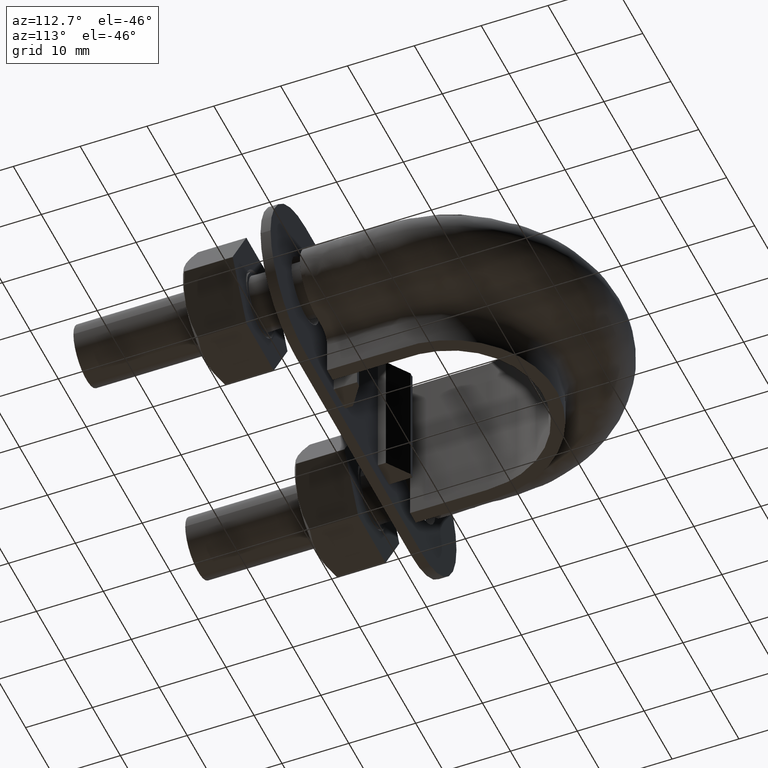
[diagram: clean part render]
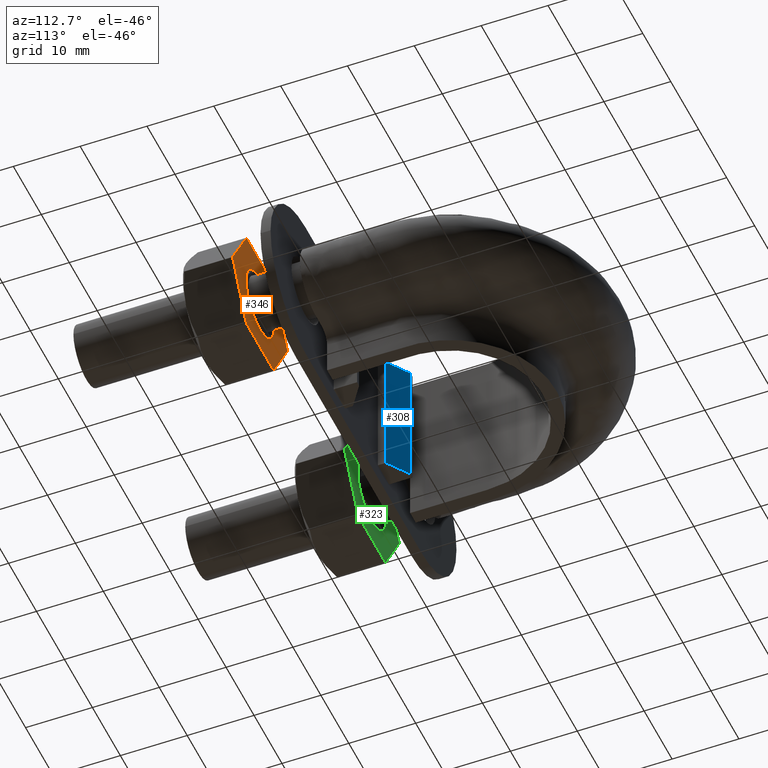
[diagram: same view with three faces highlighted in distinct colors, each labeled with its STEP entity id]
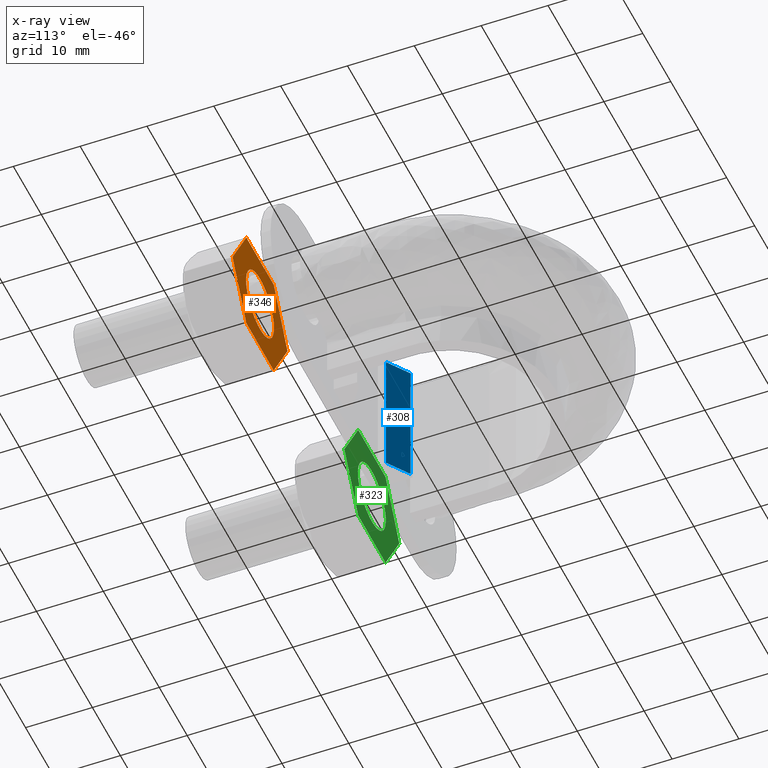
[diagram: x-ray of the same camera — body ghosted, the three highlighted faces saturated]
A machine part, auxiliary view with three faces highlighted in distinct colors.
The next image is the same camera in x-ray (body ghosted, the three faces saturated) — at least one of them is partly hidden behind the body in this view.
Their STEP definitions:

[orange] entity #346 — the highlighted planar face has unit normal (-0, -1, -0).
#346 = ADVANCED_FACE( '', ( #548, #549 ), #550, .F. );
#548 = FACE_BOUND( '', #1491, .T. );
#549 = FACE_OUTER_BOUND( '', #1492, .T. );
#550 = PLANE( '', #1493 );
#1491 = EDGE_LOOP( '', ( #2136 ) );
#1492 = EDGE_LOOP( '', ( #2137, #2138, #2139, #2140, #2141, #2142, #2143, #2144, #2145, #2146, #2147, #2148 ) );
#1493 = AXIS2_PLACEMENT_3D( '', #2149, #2150, #2151 );
#2136 = ORIENTED_EDGE( '', *, *, #2453, .F. );
#2137 = ORIENTED_EDGE( '', *, *, #2454, .T. );
#2138 = ORIENTED_EDGE( '', *, *, #2455, .T. );
#2139 = ORIENTED_EDGE( '', *, *, #2456, .T. );
#2140 = ORIENTED_EDGE( '', *, *, #2449, .T. );
#2141 = ORIENTED_EDGE( '', *, *, #2457, .T. );
#2142 = ORIENTED_EDGE( '', *, *, #2458, .T. );
#2143 = ORIENTED_EDGE( '', *, *, #2459, .T. );
#2144 = ORIENTED_EDGE( '', *, *, #2460, .T. );
#2145 = ORIENTED_EDGE( '', *, *, #2461, .T. );
#2146 = ORIENTED_EDGE( '', *, *, #2462, .T. );
#2147 = ORIENTED_EDGE( '', *, *, #2463, .T. );
#2148 = ORIENTED_EDGE( '', *, *, #2464, .T. );
#2149 = CARTESIAN_POINT( '', ( 15.1000000961346, 26.0000000000000, 8.48704901258559 ) );
#2150 = DIRECTION( '', ( -4.89842541528951E-016, -1.00000000000000, -6.12303176911189E-017 ) );
#2151 = DIRECTION( '', ( 0.866025409447909, -4.54831245837540E-016, 0.499999990190582 ) );
#2449 = EDGE_CURVE( '', #2782, #2780, #2783, .T. );
#2453 = EDGE_CURVE( '', #2788, #2788, #2789, .T. );
#2454 = EDGE_CURVE( '', #2790, #2791, #2792, .T. );
#2455 = EDGE_CURVE( '', #2791, #2793, #2794, .T. );
#2456 = EDGE_CURVE( '', #2793, #2782, #2795, .T. );
#2457 = EDGE_CURVE( '', #2780, #2796, #2797, .T. );
#2458 = EDGE_CURVE( '', #2796, #2798, #2799, .T. );
#2459 = EDGE_CURVE( '', #2798, #2800, #2801, .T. );
#2460 = EDGE_CURVE( '', #2800, #2802, #2803, .T. );
#2461 = EDGE_CURVE( '', #2802, #2804, #2805, .T. );
#2462 = EDGE_CURVE( '', #2804, #2806, #2807, .T. );
#2463 = EDGE_CURVE( '', #2806, #2808, #2809, .T. );
#2464 = EDGE_CURVE( '', #2808, #2790, #2810, .T. );
#2780 = VERTEX_POINT( '', #3481 );
#2782 = VERTEX_POINT( '', #3484 );
#2783 = LINE( '', #3485, #3486 );
#2788 = VERTEX_POINT( '', #3499 );
#2789 = CIRCLE( '', #3500, 5.00000000000000 );
#2790 = VERTEX_POINT( '', #3501 );
#2791 = VERTEX_POINT( '', #3502 );
#2792 = CIRCLE( '', #3503, 9.80000000000000 );
#2793 = VERTEX_POINT( '', #3504 );
#2794 = LINE( '', #3505, #3506 );
#2795 = CIRCLE( '', #3507, 9.80000000000000 );
#2796 = VERTEX_POINT( '', #3508 );
#2797 = CIRCLE( '', #3509, 9.80000000000000 );
#2798 = VERTEX_POINT( '', #3510 );
#2799 = LINE( '', #3511, #3512 );
#2800 = VERTEX_POINT( '', #3513 );
#2801 = CIRCLE( '', #3514, 9.80000000000000 );
#2802 = VERTEX_POINT( '', #3515 );
#2803 = LINE( '', #3516, #3517 );
#2804 = VERTEX_POINT( '', #3518 );
#2805 = CIRCLE( '', #3519, 9.80000000000000 );
#2806 = VERTEX_POINT( '', #3520 );
#2807 = LINE( '', #3521, #3522 );
#2808 = VERTEX_POINT( '', #3523 );
#2809 = CIRCLE( '', #3524, 9.80000000000000 );
#2810 = LINE( '', #3525, #3526 );
#3481 = CARTESIAN_POINT( '', ( 24.9224661565291, 26.0000000000000, -8.47403840785118 ) );
#3484 = CARTESIAN_POINT( '', ( 29.7999656115240, 26.0000000000000, -0.0259617589030390 ) );
#3485 = CARTESIAN_POINT( '', ( 29.8112159320933, 26.0000000000000, -0.00647563258534481 ) );
#3486 = VECTOR( '', #3862, 1000.00000000019 );
#3499 = CARTESIAN_POINT( '', ( 15.6698729527605, 26.0000000000000, -2.49999995095291 ) );
#3500 = AXIS2_PLACEMENT_3D( '', #3867, #3868, #3869 );
#3501 = CARTESIAN_POINT( '', ( 24.8774994555830, 26.0000000000000, 8.49999994475089 ) );
#3502 = CARTESIAN_POINT( '', ( 24.9224663485024, 26.0000000000000, 8.47403829634019 ) );
#3503 = AXIS2_PLACEMENT_3D( '', #3870, #3871, #3872 );
#3504 = CARTESIAN_POINT( '', ( 29.7999656121121, 26.0000000000000, 0.0259615368997081 ) );
#3505 = CARTESIAN_POINT( '', ( 22.4612160764418, 26.0000000000000, 12.7370489292055 ) );
#3506 = VECTOR( '', #3873, 999.999999999846 );
#3507 = AXIS2_PLACEMENT_3D( '', #3874, #3875, #3876 );
#3508 = CARTESIAN_POINT( '', ( 24.8774992630216, 26.0000000000000, -8.50000005524322 ) );
#3509 = AXIS2_PLACEMENT_3D( '', #3877, #3878, #3879 );
#3510 = CARTESIAN_POINT( '', ( 15.1225005444170, 26.0000000000000, -8.49999994475088 ) );
#3511 = CARTESIAN_POINT( '', ( 15.0999999037199, 26.0000000000000, -8.49999994449603 ) );
#3512 = VECTOR( '', #3880, 1000.00000000019 );
#3513 = CARTESIAN_POINT( '', ( 15.0775336514977, 26.0000000000000, -8.47403829634018 ) );
#3514 = AXIS2_PLACEMENT_3D( '', #3881, #3882, #3883 );
#3515 = CARTESIAN_POINT( '', ( 10.2000343878879, 26.0000000000000, -0.0259615368997049 ) );
#3516 = CARTESIAN_POINT( '', ( 7.73878411582735, 26.0000000000000, 4.23704909596564 ) );
#3517 = VECTOR( '', #3884, 999.999999999846 );
#3518 = CARTESIAN_POINT( '', ( 10.2000343884760, 26.0000000000000, 0.0259617589030396 ) );
#3519 = AXIS2_PLACEMENT_3D( '', #3885, #3886, #3887 );
#3520 = CARTESIAN_POINT( '', ( 15.0775338434709, 26.0000000000000, 8.47403840785118 ) );
#3521 = CARTESIAN_POINT( '', ( 15.0887841640402, 26.0000000000000, 8.49352453416888 ) );
#3522 = VECTOR( '', #3888, 1000.00000000019 );
#3523 = CARTESIAN_POINT( '', ( 15.1225007369784, 26.0000000000000, 8.50000005524323 ) );
#3524 = AXIS2_PLACEMENT_3D( '', #3889, #3890, #3891 );
#3525 = CARTESIAN_POINT( '', ( 15.1000000962813, 26.0000000000000, 8.50000005549808 ) );
#3526 = VECTOR( '', #3892, 1000.00000000019 );
#3862 = DIRECTION( '', ( -0.500000009809591, 2.97948285825149E-016, -0.866025398120868 ) );
#3867 = CARTESIAN_POINT( '', ( 20.0000000000000, 26.0000000000000, 1.59198825996908E-015 ) );
#3868 = DIRECTION( '', ( 4.89842541528951E-016, 1.00000000000000, 6.12303176911189E-017 ) );
#3869 = DIRECTION( '', ( -0.866025409447909, 4.54831245837540E-016, -0.499999990190582 ) );
#3870 = CARTESIAN_POINT( '', ( 20.0000000000000, 26.0000000000000, 1.59198825996908E-015 ) );
#3871 = DIRECTION( '', ( 4.89842541528951E-016, 1.00000000000000, 6.12303176911188E-017 ) );
#3872 = DIRECTION( '', ( -0.866025409447909, 4.54831245837540E-016, -0.499999990190582 ) );
#3873 = DIRECTION( '', ( 0.499999990190582, -1.91894255010328E-016, -0.866025409447909 ) );
#3874 = CARTESIAN_POINT( '', ( 20.0000000000000, 26.0000000000000, 1.59198825996908E-015 ) );
#3875 = DIRECTION( '', ( 4.89842541528951E-016, 1.00000000000000, 6.12303176911188E-017 ) );
#3876 = DIRECTION( '', ( -0.866025409447909, 4.54831245837540E-016, -0.499999990190582 ) );
#3877 = CARTESIAN_POINT( '', ( 20.0000000000000, 26.0000000000000, 1.59198825996908E-015 ) );
#3878 = DIRECTION( '', ( 4.89842541528951E-016, 1.00000000000000, 6.12303176911188E-017 ) );
#3879 = DIRECTION( '', ( -0.866025409447909, 4.54831245837540E-016, -0.499999990190582 ) );
#3880 = DIRECTION( '', ( -1.00000000000000, 4.89842540835411E-016, 1.13267403789564E-008 ) );
#3881 = CARTESIAN_POINT( '', ( 20.0000000000000, 26.0000000000000, 1.59198825996908E-015 ) );
#3882 = DIRECTION( '', ( 4.89842541528951E-016, 1.00000000000000, 6.12303176911188E-017 ) );
#3883 = DIRECTION( '', ( -0.866025409447909, 4.54831245837540E-016, -0.499999990190582 ) );
#3884 = DIRECTION( '', ( -0.499999990190582, 1.91894255010328E-016, 0.866025409447909 ) );
#3885 = CARTESIAN_POINT( '', ( 20.0000000000000, 26.0000000000000, 1.59198825996908E-015 ) );
#3886 = DIRECTION( '', ( 4.89842541528951E-016, 1.00000000000000, 6.12303176911188E-017 ) );
#3887 = DIRECTION( '', ( -0.866025409447909, 4.54831245837540E-016, -0.499999990190582 ) );
#3888 = DIRECTION( '', ( 0.500000009809591, -2.97948285825149E-016, 0.866025398120868 ) );
#3889 = CARTESIAN_POINT( '', ( 20.0000000000000, 26.0000000000000, 1.59198825996908E-015 ) );
#3890 = DIRECTION( '', ( 4.89842541528951E-016, 1.00000000000000, 6.12303176911188E-017 ) );
#3891 = DIRECTION( '', ( -0.866025409447909, 4.54831245837540E-016, -0.499999990190582 ) );
#3892 = DIRECTION( '', ( 1.00000000000000, -4.89842540835411E-016, -1.13267403789564E-008 ) );

[blue] entity #308 — the highlighted planar face has unit normal (0.5736, 0.8192, -0).
#308 = ADVANCED_FACE( '', ( #466 ), #467, .T. );
#466 = FACE_OUTER_BOUND( '', #1409, .T. );
#467 = PLANE( '', #1410 );
#1409 = EDGE_LOOP( '', ( #1852, #1853, #1854, #1855 ) );
#1410 = AXIS2_PLACEMENT_3D( '', #1856, #1857, #1858 );
#1852 = ORIENTED_EDGE( '', *, *, #2371, .F. );
#1853 = ORIENTED_EDGE( '', *, *, #2370, .F. );
#1854 = ORIENTED_EDGE( '', *, *, #2372, .T. );
#1855 = ORIENTED_EDGE( '', *, *, #2373, .T. );
#1856 = CARTESIAN_POINT( '', ( -5.90000011327237, 34.0000000000005, -9.99999993317632 ) );
#1857 = DIRECTION( '', ( 0.573576436350957, 0.819152044289054, -6.49660426300734E-009 ) );
#1858 = DIRECTION( '', ( 0.819152044289054, -0.573576436350957, -9.27830693621170E-009 ) );
#2370 = EDGE_CURVE( '', #2650, #2648, #2652, .T. );
#2371 = EDGE_CURVE( '', #2648, #2653, #2654, .T. );
#2372 = EDGE_CURVE( '', #2650, #2655, #2656, .T. );
#2373 = EDGE_CURVE( '', #2655, #2653, #2657, .T. );
#2648 = VERTEX_POINT( '', #3229 );
#2650 = VERTEX_POINT( '', #3232 );
#2652 = LINE( '', #3235, #3236 );
#2653 = VERTEX_POINT( '', #3237 );
#2654 = LINE( '', #3238, #3239 );
#2655 = VERTEX_POINT( '', #3240 );
#2656 = LINE( '', #3241, #3242 );
#2657 = LINE( '', #3243, #3244 );
#3229 = CARTESIAN_POINT( '', ( -5.89999988673951, 33.9999999999983, 10.0000000668237 ) );
#3232 = CARTESIAN_POINT( '', ( -5.90000011327237, 34.0000000000005, -9.99999993317632 ) );
#3235 = CARTESIAN_POINT( '', ( -5.90000011327237, 34.0000000000005, -9.99999993317632 ) );
#3236 = VECTOR( '', #3738, 1000.00000000000 );
#3237 = CARTESIAN_POINT( '', ( -9.18474030224662, 36.2999999999979, 10.0000001040290 ) );
#3238 = CARTESIAN_POINT( '', ( -5.89999988673950, 33.9999999999983, 10.0000000668237 ) );
#3239 = VECTOR( '', #3739, 1000.00000000000 );
#3240 = CARTESIAN_POINT( '', ( -9.18474052877948, 36.3000000000002, -9.99999989597098 ) );
#3241 = CARTESIAN_POINT( '', ( -5.90000011327237, 34.0000000000005, -9.99999993317632 ) );
#3242 = VECTOR( '', #3740, 1000.00000000000 );
#3243 = CARTESIAN_POINT( '', ( -9.18474052877948, 36.3000000000002, -9.99999989597098 ) );
#3244 = VECTOR( '', #3741, 1000.00000000000 );
#3738 = DIRECTION( '', ( 1.13266432158973E-008, -1.11564863224399E-013, 1.00000000000000 ) );
#3739 = DIRECTION( '', ( -0.819152044289054, 0.573576436350957, 9.27830712169175E-009 ) );
#3740 = DIRECTION( '', ( -0.819152044289054, 0.573576436350957, 9.27830712169175E-009 ) );
#3741 = DIRECTION( '', ( 1.13266432158973E-008, -1.11564863224399E-013, 1.00000000000000 ) );

[green] entity #323 — the highlighted planar face has unit normal (-0, -1, -0).
#323 = ADVANCED_FACE( '', ( #497, #498 ), #499, .F. );
#497 = FACE_BOUND( '', #1440, .T. );
#498 = FACE_OUTER_BOUND( '', #1441, .T. );
#499 = PLANE( '', #1442 );
#1440 = EDGE_LOOP( '', ( #1963 ) );
#1441 = EDGE_LOOP( '', ( #1964, #1965, #1966, #1967, #1968, #1969, #1970, #1971, #1972, #1973, #1974, #1975 ) );
#1442 = AXIS2_PLACEMENT_3D( '', #1976, #1977, #1978 );
#1963 = ORIENTED_EDGE( '', *, *, #2401, .F. );
#1964 = ORIENTED_EDGE( '', *, *, #2402, .T. );
#1965 = ORIENTED_EDGE( '', *, *, #2403, .T. );
#1966 = ORIENTED_EDGE( '', *, *, #2404, .T. );
#1967 = ORIENTED_EDGE( '', *, *, #2397, .T. );
#1968 = ORIENTED_EDGE( '', *, *, #2405, .T. );
#1969 = ORIENTED_EDGE( '', *, *, #2406, .T. );
#1970 = ORIENTED_EDGE( '', *, *, #2407, .T. );
#1971 = ORIENTED_EDGE( '', *, *, #2408, .T. );
#1972 = ORIENTED_EDGE( '', *, *, #2409, .T. );
#1973 = ORIENTED_EDGE( '', *, *, #2410, .T. );
#1974 = ORIENTED_EDGE( '', *, *, #2411, .T. );
#1975 = ORIENTED_EDGE( '', *, *, #2412, .T. );
#1976 = CARTESIAN_POINT( '', ( -24.8999999038654, 26.0000000000000, 8.48704901258559 ) );
#1977 = DIRECTION( '', ( -4.89842541528951E-016, -1.00000000000000, -6.12303176911189E-017 ) );
#1978 = DIRECTION( '', ( 0.866025409447909, -4.54831245837540E-016, 0.499999990190582 ) );
#2397 = EDGE_CURVE( '', #2696, #2694, #2697, .T. );
#2401 = EDGE_CURVE( '', #2702, #2702, #2703, .T. );
#2402 = EDGE_CURVE( '', #2704, #2705, #2706, .T. );
#2403 = EDGE_CURVE( '', #2705, #2707, #2708, .T. );
#2404 = EDGE_CURVE( '', #2707, #2696, #2709, .T. );
#2405 = EDGE_CURVE( '', #2694, #2710, #2711, .T. );
#2406 = EDGE_CURVE( '', #2710, #2712, #2713, .T. );
#2407 = EDGE_CURVE( '', #2712, #2714, #2715, .T. );
#2408 = EDGE_CURVE( '', #2714, #2716, #2717, .T. );
#2409 = EDGE_CURVE( '', #2716, #2718, #2719, .T. );
#2410 = EDGE_CURVE( '', #2718, #2720, #2721, .T. );
#2411 = EDGE_CURVE( '', #2720, #2722, #2723, .T. );
#2412 = EDGE_CURVE( '', #2722, #2704, #2724, .T. );
#2694 = VERTEX_POINT( '', #3309 );
#2696 = VERTEX_POINT( '', #3312 );
#2697 = LINE( '', #3313, #3314 );
#2702 = VERTEX_POINT( '', #3327 );
#2703 = CIRCLE( '', #3328, 5.00000000000000 );
#2704 = VERTEX_POINT( '', #3329 );
#2705 = VERTEX_POINT( '', #3330 );
#2706 = CIRCLE( '', #3331, 9.80000000000000 );
#2707 = VERTEX_POINT( '', #3332 );
#2708 = LINE( '', #3333, #3334 );
#2709 = CIRCLE( '', #3335, 9.80000000000000 );
#2710 = VERTEX_POINT( '', #3336 );
#2711 = CIRCLE( '', #3337, 9.80000000000000 );
#2712 = VERTEX_POINT( '', #3338 );
#2713 = LINE( '', #3339, #3340 );
#2714 = VERTEX_POINT( '', #3341 );
#2715 = CIRCLE( '', #3342, 9.80000000000000 );
#2716 = VERTEX_POINT( '', #3343 );
#2717 = LINE( '', #3344, #3345 );
#2718 = VERTEX_POINT( '', #3346 );
#2719 = CIRCLE( '', #3347, 9.80000000000000 );
#2720 = VERTEX_POINT( '', #3348 );
#2721 = LINE( '', #3349, #3350 );
#2722 = VERTEX_POINT( '', #3351 );
#2723 = CIRCLE( '', #3352, 9.80000000000000 );
#2724 = LINE( '', #3353, #3354 );
#3309 = CARTESIAN_POINT( '', ( -15.0775338434709, 26.0000000000000, -8.47403840785118 ) );
#3312 = CARTESIAN_POINT( '', ( -10.2000343884760, 26.0000000000000, -0.0259617589030390 ) );
#3313 = CARTESIAN_POINT( '', ( -10.1887840679067, 26.0000000000000, -0.00647563258534481 ) );
#3314 = VECTOR( '', #3778, 1000.00000000019 );
#3327 = CARTESIAN_POINT( '', ( -24.3301270472395, 26.0000000000000, -2.49999995095291 ) );
#3328 = AXIS2_PLACEMENT_3D( '', #3783, #3784, #3785 );
#3329 = CARTESIAN_POINT( '', ( -15.1225005444170, 26.0000000000000, 8.49999994475089 ) );
#3330 = CARTESIAN_POINT( '', ( -15.0775336514976, 26.0000000000000, 8.47403829634019 ) );
#3331 = AXIS2_PLACEMENT_3D( '', #3786, #3787, #3788 );
#3332 = CARTESIAN_POINT( '', ( -10.2000343878879, 26.0000000000000, 0.0259615368997081 ) );
#3333 = CARTESIAN_POINT( '', ( -17.5387839235582, 26.0000000000000, 12.7370489292055 ) );
#3334 = VECTOR( '', #3789, 999.999999999846 );
#3335 = AXIS2_PLACEMENT_3D( '', #3790, #3791, #3792 );
#3336 = CARTESIAN_POINT( '', ( -15.1225007369784, 26.0000000000000, -8.50000005524322 ) );
#3337 = AXIS2_PLACEMENT_3D( '', #3793, #3794, #3795 );
#3338 = CARTESIAN_POINT( '', ( -24.8774994555830, 26.0000000000000, -8.49999994475088 ) );
#3339 = CARTESIAN_POINT( '', ( -24.9000000962801, 26.0000000000000, -8.49999994449603 ) );
#3340 = VECTOR( '', #3796, 1000.00000000019 );
#3341 = CARTESIAN_POINT( '', ( -24.9224663485023, 26.0000000000000, -8.47403829634018 ) );
#3342 = AXIS2_PLACEMENT_3D( '', #3797, #3798, #3799 );
#3343 = CARTESIAN_POINT( '', ( -29.7999656121121, 26.0000000000000, -0.0259615368997049 ) );
#3344 = CARTESIAN_POINT( '', ( -32.2612158841727, 26.0000000000000, 4.23704909596564 ) );
#3345 = VECTOR( '', #3800, 999.999999999846 );
#3346 = CARTESIAN_POINT( '', ( -29.7999656115240, 26.0000000000000, 0.0259617589030396 ) );
#3347 = AXIS2_PLACEMENT_3D( '', #3801, #3802, #3803 );
#3348 = CARTESIAN_POINT( '', ( -24.9224661565291, 26.0000000000000, 8.47403840785118 ) );
#3349 = CARTESIAN_POINT( '', ( -24.9112158359598, 26.0000000000000, 8.49352453416888 ) );
#3350 = VECTOR( '', #3804, 1000.00000000019 );
#3351 = CARTESIAN_POINT( '', ( -24.8774992630216, 26.0000000000000, 8.50000005524323 ) );
#3352 = AXIS2_PLACEMENT_3D( '', #3805, #3806, #3807 );
#3353 = CARTESIAN_POINT( '', ( -24.8999999037187, 26.0000000000000, 8.50000005549808 ) );
#3354 = VECTOR( '', #3808, 1000.00000000019 );
#3778 = DIRECTION( '', ( -0.500000009809591, 2.97948285825149E-016, -0.866025398120868 ) );
#3783 = CARTESIAN_POINT( '', ( -20.0000000000000, 26.0000000000000, 1.59198825996908E-015 ) );
#3784 = DIRECTION( '', ( 4.89842541528951E-016, 1.00000000000000, 6.12303176911189E-017 ) );
#3785 = DIRECTION( '', ( -0.866025409447909, 4.54831245837540E-016, -0.499999990190582 ) );
#3786 = CARTESIAN_POINT( '', ( -20.0000000000000, 26.0000000000000, 1.59198825996908E-015 ) );
#3787 = DIRECTION( '', ( 4.89842541528951E-016, 1.00000000000000, 6.12303176911188E-017 ) );
#3788 = DIRECTION( '', ( -0.866025409447909, 4.54831245837540E-016, -0.499999990190582 ) );
#3789 = DIRECTION( '', ( 0.499999990190582, -1.91894255010328E-016, -0.866025409447909 ) );
#3790 = CARTESIAN_POINT( '', ( -20.0000000000000, 26.0000000000000, 1.59198825996908E-015 ) );
#3791 = DIRECTION( '', ( 4.89842541528951E-016, 1.00000000000000, 6.12303176911188E-017 ) );
#3792 = DIRECTION( '', ( -0.866025409447909, 4.54831245837540E-016, -0.499999990190582 ) );
#3793 = CARTESIAN_POINT( '', ( -20.0000000000000, 26.0000000000000, 1.59198825996908E-015 ) );
#3794 = DIRECTION( '', ( 4.89842541528951E-016, 1.00000000000000, 6.12303176911188E-017 ) );
#3795 = DIRECTION( '', ( -0.866025409447909, 4.54831245837540E-016, -0.499999990190582 ) );
#3796 = DIRECTION( '', ( -1.00000000000000, 4.89842540835411E-016, 1.13267403789564E-008 ) );
#3797 = CARTESIAN_POINT( '', ( -20.0000000000000, 26.0000000000000, 1.59198825996908E-015 ) );
#3798 = DIRECTION( '', ( 4.89842541528951E-016, 1.00000000000000, 6.12303176911188E-017 ) );
#3799 = DIRECTION( '', ( -0.866025409447909, 4.54831245837540E-016, -0.499999990190582 ) );
#3800 = DIRECTION( '', ( -0.499999990190582, 1.91894255010328E-016, 0.866025409447909 ) );
#3801 = CARTESIAN_POINT( '', ( -20.0000000000000, 26.0000000000000, 1.59198825996908E-015 ) );
#3802 = DIRECTION( '', ( 4.89842541528951E-016, 1.00000000000000, 6.12303176911188E-017 ) );
#3803 = DIRECTION( '', ( -0.866025409447909, 4.54831245837540E-016, -0.499999990190582 ) );
#3804 = DIRECTION( '', ( 0.500000009809591, -2.97948285825149E-016, 0.866025398120868 ) );
#3805 = CARTESIAN_POINT( '', ( -20.0000000000000, 26.0000000000000, 1.59198825996908E-015 ) );
#3806 = DIRECTION( '', ( 4.89842541528951E-016, 1.00000000000000, 6.12303176911188E-017 ) );
#3807 = DIRECTION( '', ( -0.866025409447909, 4.54831245837540E-016, -0.499999990190582 ) );
#3808 = DIRECTION( '', ( 1.00000000000000, -4.89842540835411E-016, -1.13267403789564E-008 ) );